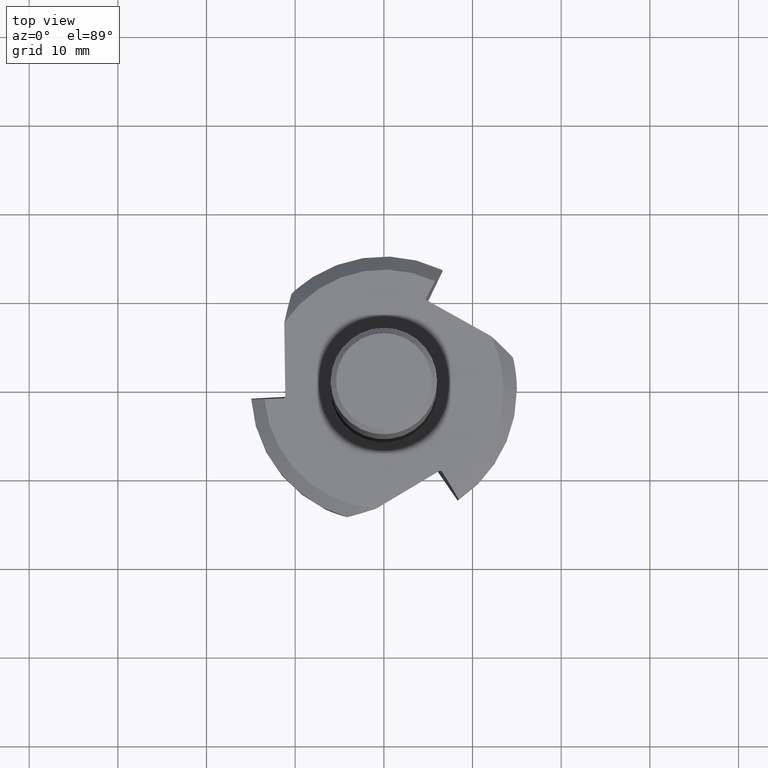
[diagram: clean part render]
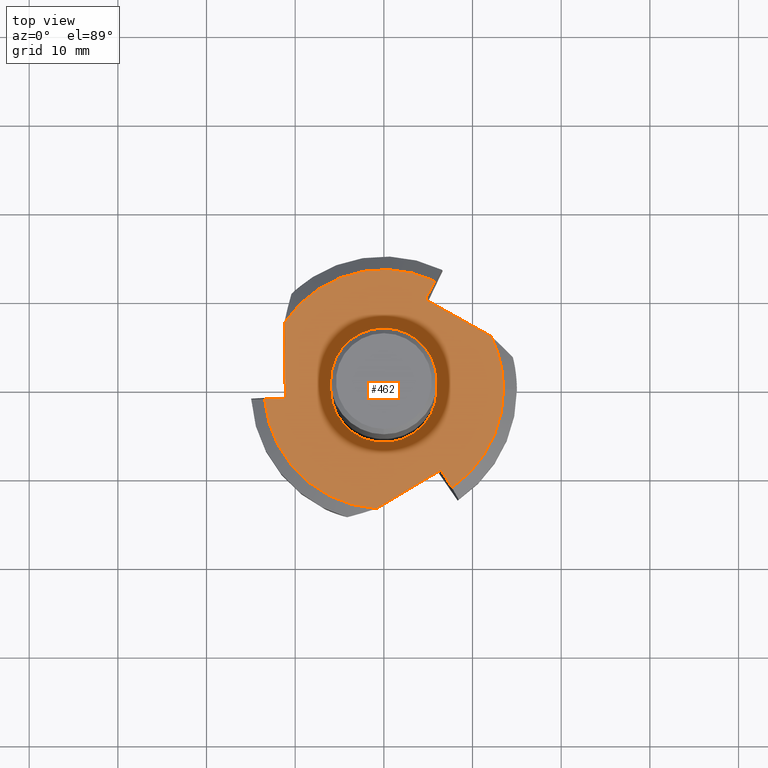
[diagram: same view with one face highlighted and labeled with its STEP entity id]
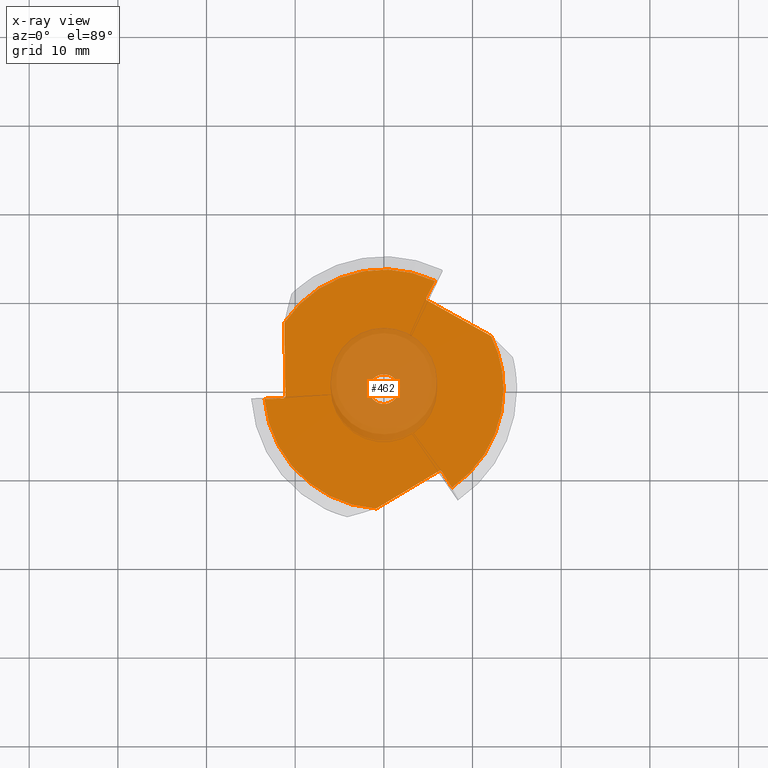
[diagram: x-ray of the same camera — body ghosted, the highlighted face saturated]
A machine part, top view. The second image highlights one B-rep face of the part: STEP entity #462.
The next image is the same camera in x-ray: the body ghosted, the highlighted face saturated — about 22% of this face is hidden behind the body in this view.
In plain terms, the highlighted planar face has unit normal (0, 0, 1).
Its self-contained STEP definition (entity closure, byte-faithful):
#402=EDGE_CURVE('',#756,#624,#1159,.T.);
#414=EDGE_CURVE('',#534,#684,#1172,.T.);
#418=VERTEX_POINT('',#1177);
#424=EDGE_CURVE('',#596,#768,#1183,.T.);
#442=VERTEX_POINT('',#1204);
#462=ADVANCED_FACE('',(#1226,#1227),#1228,.T.);
#534=VERTEX_POINT('',#1304);
#546=VERTEX_POINT('',#1317);
#550=EDGE_CURVE('',#1070,#418,#1321,.T.);
#558=VERTEX_POINT('',#1329);
#574=VERTEX_POINT('',#1348);
#592=EDGE_CURVE('',#1070,#558,#1368,.T.);
#596=VERTEX_POINT('',#1372);
#608=EDGE_CURVE('',#546,#898,#1387,.T.);
#624=VERTEX_POINT('',#1404);
#664=EDGE_CURVE('',#898,#546,#1447,.T.);
#674=EDGE_CURVE('',#558,#768,#1457,.T.);
#684=VERTEX_POINT('',#1467);
#702=EDGE_CURVE('',#794,#596,#1487,.T.);
#756=VERTEX_POINT('',#1545);
#768=VERTEX_POINT('',#1557);
#794=VERTEX_POINT('',#1585);
#846=EDGE_CURVE('',#574,#624,#1642,.T.);
#864=VERTEX_POINT('',#1662);
#868=EDGE_CURVE('',#864,#684,#1667,.T.);
#898=VERTEX_POINT('',#1704);
#900=EDGE_CURVE('',#864,#794,#1706,.T.);
#1016=EDGE_CURVE('',#442,#534,#1831,.T.);
#1064=EDGE_CURVE('',#574,#442,#1884,.T.);
#1070=VERTEX_POINT('',#1890);
#1132=EDGE_CURVE('',#418,#756,#1954,.T.);
#1159=LINE('',#1975,#1976);
#1172=LINE('',#1995,#1996);
#1177=CARTESIAN_POINT('',(4.85585327114044,10.0290744593336,-52.94));
#1183=LINE('',#2019,#2020);
#1204=CARTESIAN_POINT('',(-11.1133598937988,-0.809244939809423,-52.94));
#1226=FACE_BOUND('',#2076,.T.);
#1227=FACE_OUTER_BOUND('',#2077,.T.);
#1228=PLANE('',#2078);
#1304=CARTESIAN_POINT('',(-11.3525974298583,-1.02784437630678,-52.94));
#1317=CARTESIAN_POINT('',(1.68,2.05733867442159E-016,-52.94));
#1321=LINE('',#2274,#2275);
#1329=CARTESIAN_POINT('',(13.5,1.59670761626383E-015,-52.94));
#1348=CARTESIAN_POINT('',(-11.2352846887964,7.48454260203632,-52.94));
#1368=CIRCLE('',#2342,13.5);
#1372=CARTESIAN_POINT('',(6.56643805594783,-9.31771558504185,-52.94));
#1387=CIRCLE('',#2374,1.68);
#1404=CARTESIAN_POINT('',(5.77378265887649,12.2030092111764,-52.94));
#1447=CIRCLE('',#2525,1.68);
#1457=CIRCLE('',#2586,13.5);
#1467=CARTESIAN_POINT('',(-13.4550073089325,-1.10126214707111,-52.94));
#1487=ELLIPSE('',#2666,0.242634919696946,0.21);
#1545=CARTESIAN_POINT('',(4.78615937391052,10.3455599613487,-52.94));
#1557=CARTESIAN_POINT('',(7.68122465005606,-11.1017470641053,-52.94));
#1585=CARTESIAN_POINT('',(6.25750662265839,-9.21982951952419,-52.94));
#1642=CIRCLE('',#3004,13.5);
#1662=CARTESIAN_POINT('',(-0.864161684672127,-13.4723132602662,-52.94));
#1667=CIRCLE('',#3046,13.5);
#1704=CARTESIAN_POINT('',(-1.68,0.0,-52.94));
#1706=LINE('',#3122,#3123);
#1831=ELLIPSE('',#3456,0.242634919696946,0.21);
#1884=LINE('',#3551,#3552);
#1890=CARTESIAN_POINT('',(12.0994463734685,5.98777065822989,-52.94));
#1954=ELLIPSE('',#3797,0.242634919696946,0.21);
#1975=CARTESIAN_POINT('',(-1.22766320736099,-0.964795325146073,-52.94));
#1976=VECTOR('',#3808,1.0);
#1995=CARTESIAN_POINT('',(-4.12156817169083,-0.775331270394233,-52.94));
#1996=VECTOR('',#3823,1.0);
#2019=CARTESIAN_POINT('',(-0.34326862094818,1.74012659554032,-52.94));
#2020=VECTOR('',#3843,1.0);
#2076=EDGE_LOOP('',(#3907,#3908));
#2077=EDGE_LOOP('',(#3909,#3910,#3911,#3912,#3913,#3914,#3915,#3916,#3917,#3918,#3919,#3920,#3921));
#2078=AXIS2_PLACEMENT_3D('',#3922,#3923,#3924);
#2274=CARTESIAN_POINT('',(28.7027984000568,-3.2754760079238,-52.94));
#2275=VECTOR('',#4005,1.0);
#2342=AXIS2_PLACEMENT_3D('',#4055,#4056,#4057);
#2374=AXIS2_PLACEMENT_3D('',#4095,#4096,#4097);
#2525=AXIS2_PLACEMENT_3D('',#4156,#4157,#4158);
#2586=AXIS2_PLACEMENT_3D('',#4159,#4160,#4161);
#2666=AXIS2_PLACEMENT_3D('',#4194,#4195,#4196);
#3004=AXIS2_PLACEMENT_3D('',#4355,#4356,#4357);
#3046=AXIS2_PLACEMENT_3D('',#4386,#4387,#4388);
#3122=CARTESIAN_POINT('',(-22.8310101709565,-26.589136733653,-52.94));
#3123=VECTOR('',#4456,1.0);
#3456=AXIS2_PLACEMENT_3D('',#4581,#4582,#4583);
#3551=CARTESIAN_POINT('',(-11.5642882291003,29.8646127415768,-52.94));
#3552=VECTOR('',#4647,1.0);
#3797=AXIS2_PLACEMENT_3D('',#4682,#4683,#4684);
#3808=DIRECTION('',(0.469471562785891,0.882947592858927,-0.0));
#3823=DIRECTION('',(-0.999390827019096,-0.0348994967025007,0.0));
#3843=DIRECTION('',(0.529919264233205,-0.848048096156426,0.0));
#3907=ORIENTED_EDGE('',*,*,#664,.T.);
#3908=ORIENTED_EDGE('',*,*,#608,.T.);
#3909=ORIENTED_EDGE('',*,*,#900,.T.);
#3910=ORIENTED_EDGE('',*,*,#702,.T.);
#3911=ORIENTED_EDGE('',*,*,#424,.T.);
#3912=ORIENTED_EDGE('',*,*,#674,.F.);
#3913=ORIENTED_EDGE('',*,*,#592,.F.);
#3914=ORIENTED_EDGE('',*,*,#550,.T.);
#3915=ORIENTED_EDGE('',*,*,#1132,.T.);
#3916=ORIENTED_EDGE('',*,*,#402,.T.);
#3917=ORIENTED_EDGE('',*,*,#846,.F.);
#3918=ORIENTED_EDGE('',*,*,#1064,.T.);
#3919=ORIENTED_EDGE('',*,*,#1016,.T.);
#3920=ORIENTED_EDGE('',*,*,#414,.T.);
#3921=ORIENTED_EDGE('',*,*,#868,.F.);
#3922=CARTESIAN_POINT('',(-7.59,0.0,-52.94));
#3923=DIRECTION('',(0.0,0.0,1.0));
#3924=DIRECTION('',(1.0,0.0,0.0));
#4005=DIRECTION('',(-0.87328141456,0.487216144010116,0.0));
#4055=CARTESIAN_POINT('',(0.0,0.0,-52.94));
#4056=DIRECTION('',(0.0,0.0,-1.0));
#4057=DIRECTION('',(-1.0,0.0,0.0));
#4095=CARTESIAN_POINT('',(0.0,0.0,-52.94));
#4096=DIRECTION('',(0.0,0.0,-1.0));
#4097=DIRECTION('',(-1.0,0.0,0.0));
#4156=CARTESIAN_POINT('',(0.0,0.0,-52.94));
#4157=DIRECTION('',(0.0,0.0,-1.0));
#4158=DIRECTION('',(-1.0,0.0,0.0));
#4159=CARTESIAN_POINT('',(0.0,0.0,-52.94));
#4160=DIRECTION('',(0.0,0.0,-1.0));
#4161=DIRECTION('',(-1.0,0.0,0.0));
#4194=CARTESIAN_POINT('',(6.3859957670847,-9.4254758961317,-52.94));
#4195=DIRECTION('',(0.0,-0.0,-1.0));
#4196=DIRECTION('',(0.580122926044263,-0.814528937900823,0.0));
#4355=CARTESIAN_POINT('',(0.0,0.0,-52.94));
#4356=DIRECTION('',(0.0,0.0,-1.0));
#4357=DIRECTION('',(-1.0,0.0,0.0));
#4386=CARTESIAN_POINT('',(0.0,0.0,-52.94));
#4387=DIRECTION('',(0.0,0.0,-1.0));
#4388=DIRECTION('',(-1.0,0.0,0.0));
#4456=DIRECTION('',(0.858582265126658,0.512675817656712,-0.0));
#4581=CARTESIAN_POINT('',(-11.3556994523503,-0.817696614689385,-52.94));
#4582=DIRECTION('',(-0.0,0.0,-1.0));
#4583=DIRECTION('',(-0.995464215361802,-0.0951367223216806,0.0));
#4647=DIRECTION('',(0.0146991494333415,-0.999891961666827,0.0));
#4682=CARTESIAN_POINT('',(4.9697036852656,10.2431725108211,-52.94));
#4683=DIRECTION('',(0.0,0.0,-1.0));
#4684=DIRECTION('',(0.415341289317539,0.909665660222504,0.0));